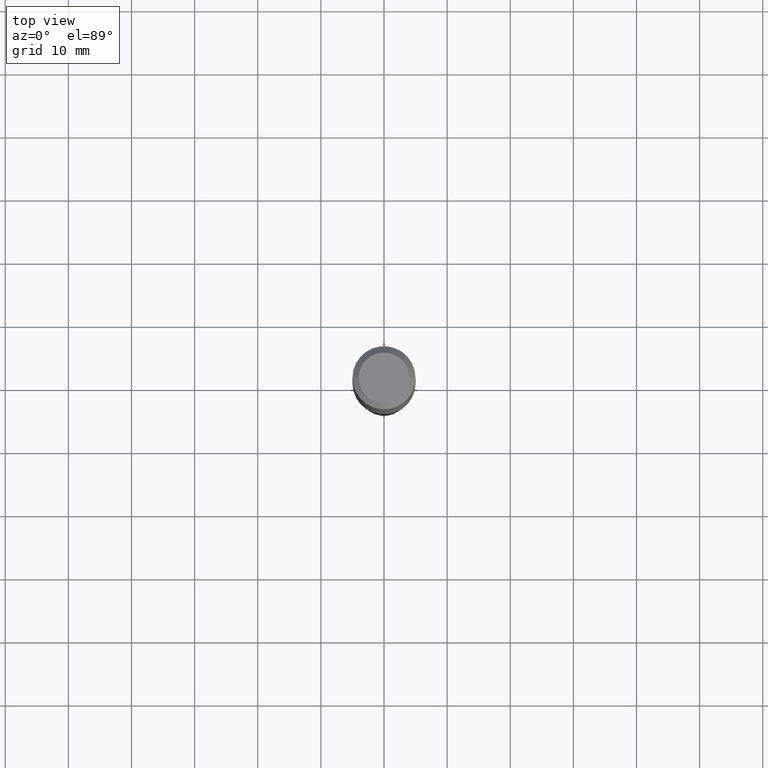
[diagram: clean part render]
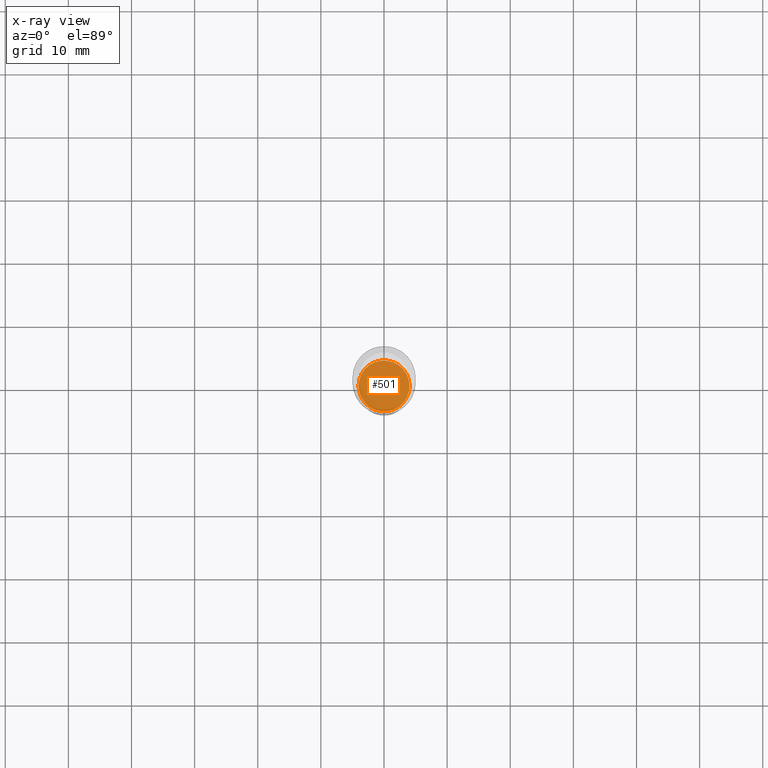
[diagram: x-ray — body ghosted, one internal face saturated and labeled with its STEP entity id]
A machine part, top view, then the same camera in x-ray: the body is ghosted and one INTERNAL B-rep face — a face not visible from any outside direction — is saturated and labeled: STEP entity #501.
In plain terms, the highlighted planar face has unit normal (-0, 0, 1).
Its self-contained STEP definition (entity closure, byte-faithful):
#1 = ORIENTED_EDGE ( 'NONE', *, *, #320, .F. ) ;
#33 = VERTEX_POINT ( 'NONE', #414 ) ;
#45 = AXIS2_PLACEMENT_3D ( 'NONE', #161, #117, #194 ) ;
#73 = VERTEX_POINT ( 'NONE', #408 ) ;
#83 = CARTESIAN_POINT ( 'NONE',  ( 7.318309949389636553E-29, -1.044860705462199337E-14, -2.992599999999999039 ) ) ;
#89 = DIRECTION ( 'NONE',  ( 1.000000000000000000, -6.982962677686265922E-15, 4.876176775795935793E-29 ) ) ;
#117 = DIRECTION ( 'NONE',  ( -2.445468806185136597E-29, 3.491481338843145583E-15, 1.000000000000000000 ) ) ;
#129 = AXIS2_PLACEMENT_3D ( 'NONE', #378, #337, #89 ) ;
#154 = DIRECTION ( 'NONE',  ( -2.445468806185136597E-29, 3.491481338843145583E-15, 1.000000000000000000 ) ) ;
#161 = CARTESIAN_POINT ( 'NONE',  ( 7.318309949389636553E-29, -1.044860705462199337E-14, -2.992599999999999039 ) ) ;
#194 = DIRECTION ( 'NONE',  ( 1.000000000000000000, -6.982962677686269866E-15, 0.000000000000000000 ) ) ;
#239 = EDGE_LOOP ( 'NONE', ( #1, #444 ) ) ;
#268 = CIRCLE ( 'NONE', #45, 0.1589500000000000079 ) ;
#320 = EDGE_CURVE ( 'NONE', #73, #33, #268, .T. ) ;
#329 = AXIS2_PLACEMENT_3D ( 'NONE', #83, #154, #445 ) ;
#337 = DIRECTION ( 'NONE',  ( -2.438088387897960049E-29, 3.491481338843145188E-15, 1.000000000000000000 ) ) ;
#358 = EDGE_CURVE ( 'NONE', #33, #73, #390, .T. ) ;
#378 = CARTESIAN_POINT ( 'NONE',  ( 1.450145086634597961E-28, -1.619404225494268910E-16, -2.992599999999999039 ) ) ;
#390 = CIRCLE ( 'NONE', #329, 0.1589500000000000079 ) ;
#408 = CARTESIAN_POINT ( 'NONE',  ( 0.1589500000000000079, -1.155854897224022715E-14, -2.992599999999999039 ) ) ;
#414 = CARTESIAN_POINT ( 'NONE',  ( -0.1589500000000000079, -9.316550148957202667E-15, -2.992599999999999039 ) ) ;
#444 = ORIENTED_EDGE ( 'NONE', *, *, #358, .F. ) ;
#445 = DIRECTION ( 'NONE',  ( 1.000000000000000000, -6.982962677686269866E-15, 0.000000000000000000 ) ) ;
#452 = PLANE ( 'NONE',  #129 ) ;
#489 = FACE_OUTER_BOUND ( 'NONE', #239, .T. ) ;
#501 = ADVANCED_FACE ( 'NONE', ( #489 ), #452, .F. ) ;